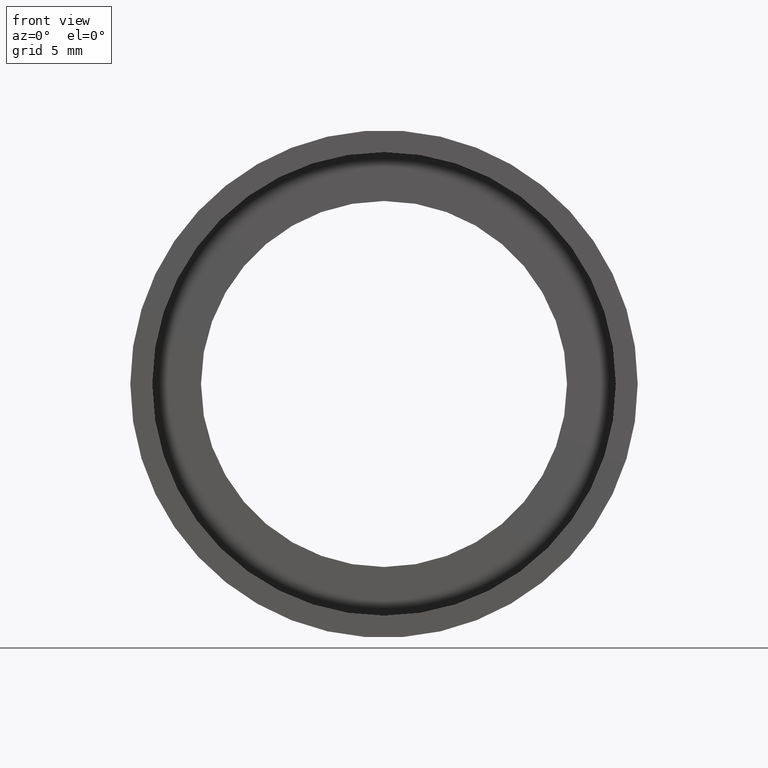
[diagram: clean part render]
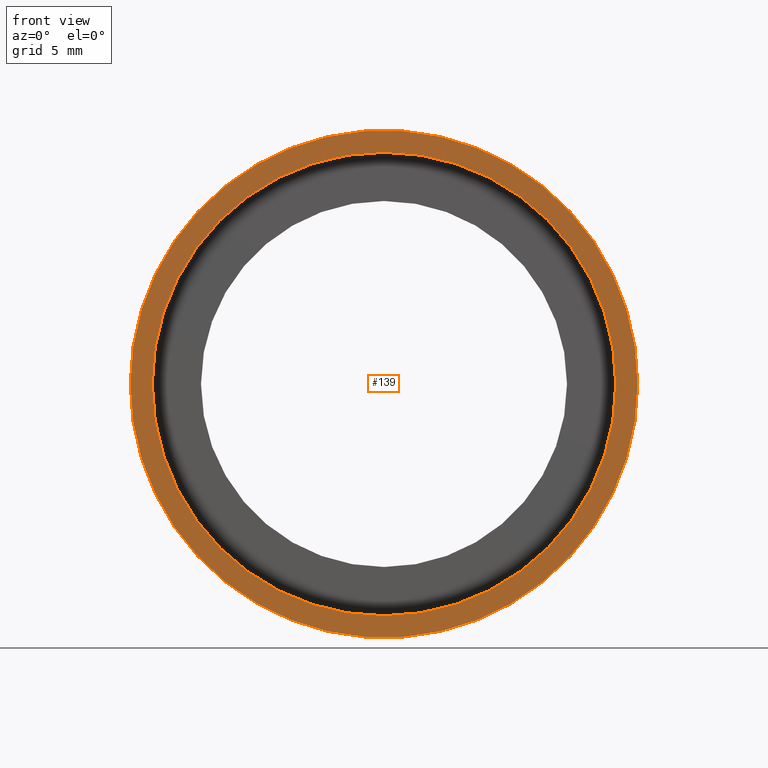
[diagram: same view with one face highlighted and labeled with its STEP entity id]
A machine part, front view. The second image highlights one B-rep face of the part: STEP entity #139.
In plain terms, the highlighted planar face has unit normal (-0, 1, 0).
Its self-contained STEP definition (entity closure, byte-faithful):
#3 = CARTESIAN_POINT ( 'NONE',  ( -17.39999999999999500, -5.600332382470004300E-015, 0.0000000000000000000 ) ) ;
#10 = DIRECTION ( 'NONE',  ( -1.224646799147351000E-016, 1.000000000000000000, -0.0000000000000000000 ) ) ;
#18 = CARTESIAN_POINT ( 'NONE',  ( 19.05000000000000100, -8.225062277234863800E-016, 0.0000000000000000000 ) ) ;
#22 = CIRCLE ( 'NONE', #483, 19.04999999999999700 ) ;
#33 = EDGE_CURVE ( 'NONE', #360, #131, #282, .T. ) ;
#43 = EDGE_CURVE ( 'NONE', #586, #600, #22, .T. ) ;
#75 = CARTESIAN_POINT ( 'NONE',  ( 2.067940818438636500E-015, -3.469446951953614200E-015, 0.0000000000000000000 ) ) ;
#76 = AXIS2_PLACEMENT_3D ( 'NONE', #18, #343, #167 ) ;
#131 = VERTEX_POINT ( 'NONE', #3 ) ;
#139 = ADVANCED_FACE ( 'NONE', ( #396, #273 ), #389, .F. ) ;
#145 = CIRCLE ( 'NONE', #194, 17.39999999999999900 ) ;
#154 = CARTESIAN_POINT ( 'NONE',  ( 2.067940818438636500E-015, -3.469446951953614200E-015, 0.0000000000000000000 ) ) ;
#159 = ORIENTED_EDGE ( 'NONE', *, *, #33, .T. ) ;
#167 = DIRECTION ( 'NONE',  ( -1.000000000000000000, -1.224646799147351000E-016, 0.0000000000000000000 ) ) ;
#194 = AXIS2_PLACEMENT_3D ( 'NONE', #198, #10, #335 ) ;
#197 = DIRECTION ( 'NONE',  ( -1.224646799147351000E-016, 1.000000000000000000, -0.0000000000000000000 ) ) ;
#198 = CARTESIAN_POINT ( 'NONE',  ( 2.067940818438636500E-015, -3.469446951953614200E-015, 0.0000000000000000000 ) ) ;
#231 = EDGE_LOOP ( 'NONE', ( #350, #323 ) ) ;
#243 = DIRECTION ( 'NONE',  ( -1.000000000000000000, -1.224646799147351000E-016, 0.0000000000000000000 ) ) ;
#255 = AXIS2_PLACEMENT_3D ( 'NONE', #75, #534, #593 ) ;
#273 = FACE_BOUND ( 'NONE', #493, .T. ) ;
#282 = CIRCLE ( 'NONE', #456, 17.39999999999999900 ) ;
#311 = CARTESIAN_POINT ( 'NONE',  ( 19.05000000000000100, -1.136494799577911100E-015, 2.332952152375707600E-015 ) ) ;
#323 = ORIENTED_EDGE ( 'NONE', *, *, #595, .F. ) ;
#327 = CARTESIAN_POINT ( 'NONE',  ( 17.40000000000000200, -1.338561521437223600E-015, 2.130885430516394900E-015 ) ) ;
#335 = DIRECTION ( 'NONE',  ( -1.000000000000000000, -1.224646799147351000E-016, 0.0000000000000000000 ) ) ;
#336 = DIRECTION ( 'NONE',  ( -1.224646799147351000E-016, 1.000000000000000000, -0.0000000000000000000 ) ) ;
#343 = DIRECTION ( 'NONE',  ( -1.224646799147351000E-016, 1.000000000000000000, 0.0000000000000000000 ) ) ;
#350 = ORIENTED_EDGE ( 'NONE', *, *, #43, .F. ) ;
#360 = VERTEX_POINT ( 'NONE', #327 ) ;
#385 = CARTESIAN_POINT ( 'NONE',  ( -19.04999999999999400, -5.802399104329317500E-015, 0.0000000000000000000 ) ) ;
#389 = PLANE ( 'NONE',  #76 ) ;
#396 = FACE_OUTER_BOUND ( 'NONE', #231, .T. ) ;
#456 = AXIS2_PLACEMENT_3D ( 'NONE', #154, #197, #521 ) ;
#471 = CARTESIAN_POINT ( 'NONE',  ( 2.067940818438636500E-015, -3.469446951953614200E-015, 0.0000000000000000000 ) ) ;
#483 = AXIS2_PLACEMENT_3D ( 'NONE', #471, #336, #243 ) ;
#493 = EDGE_LOOP ( 'NONE', ( #550, #159 ) ) ;
#521 = DIRECTION ( 'NONE',  ( -1.000000000000000000, -1.224646799147351000E-016, 0.0000000000000000000 ) ) ;
#534 = DIRECTION ( 'NONE',  ( -1.224646799147351000E-016, 1.000000000000000000, -0.0000000000000000000 ) ) ;
#545 = EDGE_CURVE ( 'NONE', #131, #360, #145, .T. ) ;
#550 = ORIENTED_EDGE ( 'NONE', *, *, #545, .T. ) ;
#572 = CIRCLE ( 'NONE', #255, 19.04999999999999700 ) ;
#586 = VERTEX_POINT ( 'NONE', #385 ) ;
#593 = DIRECTION ( 'NONE',  ( -1.000000000000000000, -1.224646799147351000E-016, 0.0000000000000000000 ) ) ;
#595 = EDGE_CURVE ( 'NONE', #600, #586, #572, .T. ) ;
#600 = VERTEX_POINT ( 'NONE', #311 ) ;